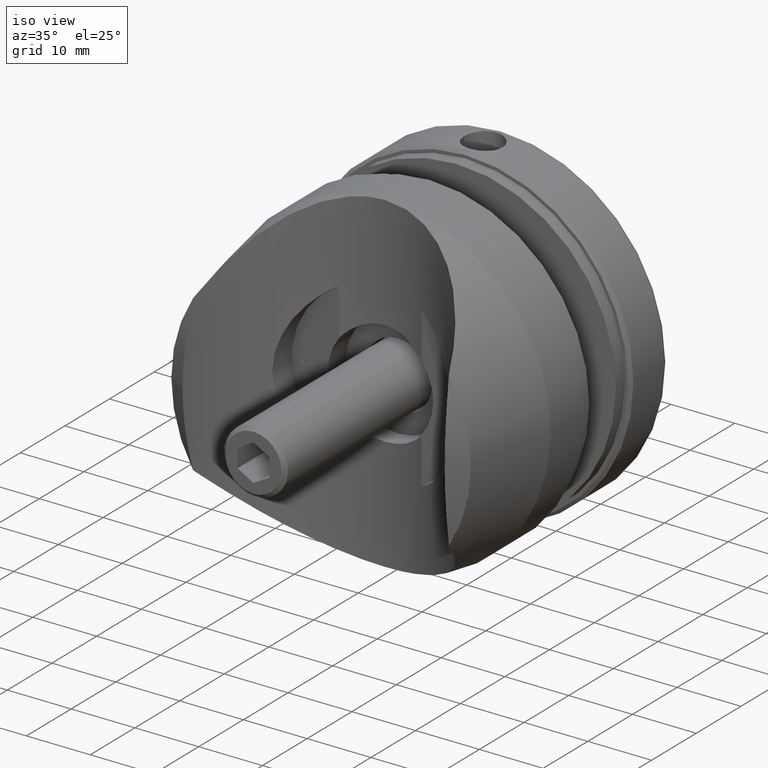
[diagram: clean part render]
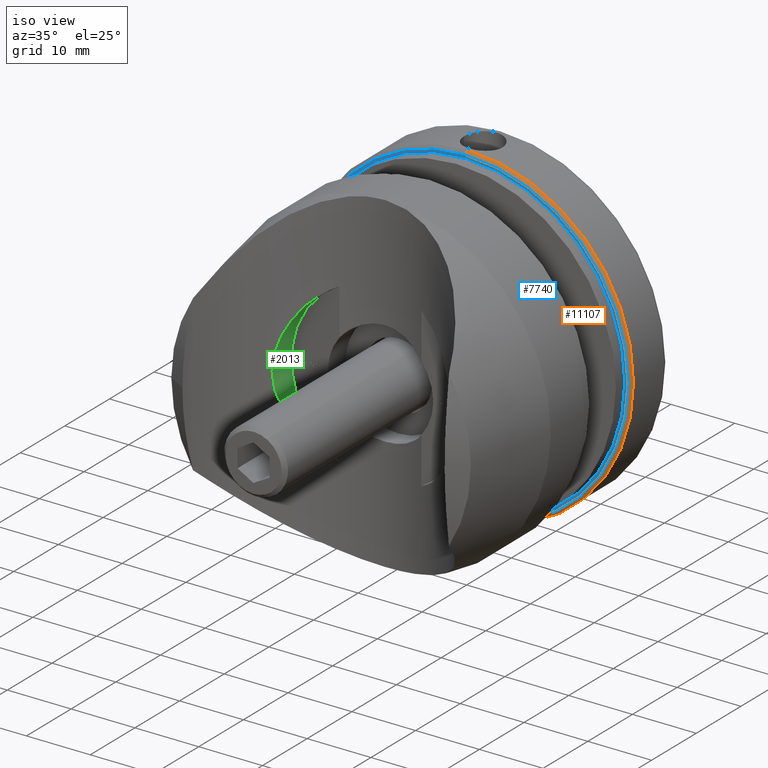
[diagram: same view with three faces highlighted in distinct colors, each labeled with its STEP entity id]
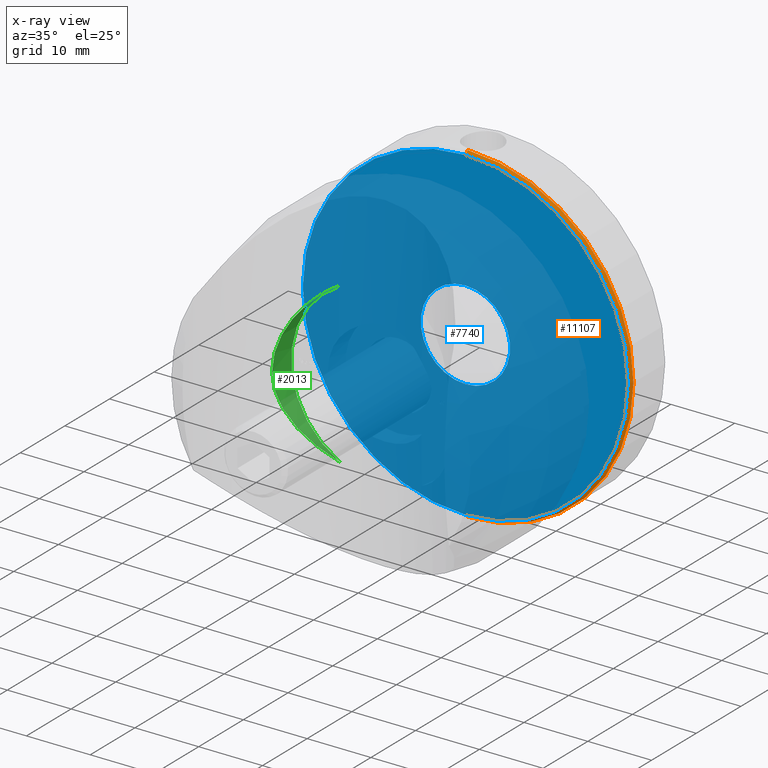
[diagram: x-ray of the same camera — body ghosted, the three highlighted faces saturated]
A machine part, iso view with three faces highlighted in distinct colors.
The next image is the same camera in x-ray (body ghosted, the three faces saturated) — at least one of them is partly hidden behind the body in this view.
Their STEP definitions:

[orange] entity #11107 — the highlighted conical surface has half-angle 45 deg.
#167 = LINE ( 'NONE', #14744, #13769 ) ;
#342 = VERTEX_POINT ( 'NONE', #437 ) ;
#437 = CARTESIAN_POINT ( 'NONE',  ( 0.000000000000000000, 8.000000000000000000, 25.49999999999999289 ) ) ;
#527 = DIRECTION ( 'NONE',  ( 8.659560562354844111E-17, 0.7071067811865549002, -0.7071067811865402453 ) ) ;
#631 = EDGE_CURVE ( 'NONE', #14041, #13141, #9693, .T. ) ;
#1333 = ORIENTED_EDGE ( 'NONE', *, *, #14711, .F. ) ;
#1458 = DIRECTION ( 'NONE',  ( 0.000000000000000000, 0.000000000000000000, -1.000000000000000000 ) ) ;
#1492 = DIRECTION ( 'NONE',  ( 0.000000000000000000, 0.000000000000000000, -1.000000000000000000 ) ) ;
#2161 = CARTESIAN_POINT ( 'NONE',  ( 3.184081677783118191E-15, 8.500000000000017764, 26.00000000000000000 ) ) ;
#2518 = VECTOR ( 'NONE', #7418, 1000.000000000000114 ) ;
#2964 = ORIENTED_EDGE ( 'NONE', *, *, #9972, .F. ) ;
#3659 = EDGE_CURVE ( 'NONE', #14817, #13141, #167, .T. ) ;
#4032 = DIRECTION ( 'NONE',  ( -0.000000000000000000, -1.000000000000000000, -0.000000000000000000 ) ) ;
#5713 = CARTESIAN_POINT ( 'NONE',  ( 0.000000000000000000, 8.500000000000017764, -26.00000000000000000 ) ) ;
#5769 = LINE ( 'NONE', #14635, #2518 ) ;
#6717 = EDGE_LOOP ( 'NONE', ( #2964, #14600, #10225, #1333 ) ) ;
#6943 = DIRECTION ( 'NONE',  ( 0.000000000000000000, 0.000000000000000000, 1.000000000000000000 ) ) ;
#6998 = CARTESIAN_POINT ( 'NONE',  ( 0.000000000000000000, 8.000000000000000000, 0.000000000000000000 ) ) ;
#7418 = DIRECTION ( 'NONE',  ( 0.000000000000000000, 0.7071067811865549002, 0.7071067811865402453 ) ) ;
#8516 = FACE_OUTER_BOUND ( 'NONE', #6717, .T. ) ;
#8793 = CIRCLE ( 'NONE', #12230, 25.49999999999999289 ) ;
#9693 = CIRCLE ( 'NONE', #10701, 26.00000000000000000 ) ;
#9972 = EDGE_CURVE ( 'NONE', #14817, #342, #8793, .T. ) ;
#10050 = CONICAL_SURFACE ( 'NONE', #11185, 25.49999999999999289, 0.7853981633974380649 ) ;
#10225 = ORIENTED_EDGE ( 'NONE', *, *, #631, .F. ) ;
#10675 = DIRECTION ( 'NONE',  ( 0.000000000000000000, 1.000000000000000000, 0.000000000000000000 ) ) ;
#10701 = AXIS2_PLACEMENT_3D ( 'NONE', #14057, #12735, #1492 ) ;
#11107 = ADVANCED_FACE ( 'NONE', ( #8516 ), #10050, .T. ) ;
#11185 = AXIS2_PLACEMENT_3D ( 'NONE', #6998, #10675, #6943 ) ;
#11667 = CARTESIAN_POINT ( 'NONE',  ( 3.153465507804433615E-15, 8.000000000000000000, -25.49999999999999289 ) ) ;
#12230 = AXIS2_PLACEMENT_3D ( 'NONE', #12632, #4032, #1458 ) ;
#12632 = CARTESIAN_POINT ( 'NONE',  ( 0.000000000000000000, 8.000000000000000000, 0.000000000000000000 ) ) ;
#12735 = DIRECTION ( 'NONE',  ( 0.000000000000000000, 1.000000000000000000, 0.000000000000000000 ) ) ;
#13141 = VERTEX_POINT ( 'NONE', #5713 ) ;
#13769 = VECTOR ( 'NONE', #527, 1000.000000000000114 ) ;
#14041 = VERTEX_POINT ( 'NONE', #2161 ) ;
#14057 = CARTESIAN_POINT ( 'NONE',  ( 0.000000000000000000, 8.500000000000017764, 0.000000000000000000 ) ) ;
#14600 = ORIENTED_EDGE ( 'NONE', *, *, #3659, .T. ) ;
#14635 = CARTESIAN_POINT ( 'NONE',  ( 0.000000000000000000, 8.000000000000000000, 25.49999999999999289 ) ) ;
#14711 = EDGE_CURVE ( 'NONE', #342, #14041, #5769, .T. ) ;
#14744 = CARTESIAN_POINT ( 'NONE',  ( 3.122849337825749433E-15, 8.000000000000000000, -25.49999999999999289 ) ) ;
#14817 = VERTEX_POINT ( 'NONE', #11667 ) ;

[blue] entity #7740 — the highlighted planar face has unit normal (0, -1, 0).
#342 = VERTEX_POINT ( 'NONE', #437 ) ;
#374 = VERTEX_POINT ( 'NONE', #4271 ) ;
#437 = CARTESIAN_POINT ( 'NONE',  ( 0.000000000000000000, 8.000000000000000000, 25.49999999999999289 ) ) ;
#508 = EDGE_CURVE ( 'NONE', #374, #10571, #6252, .T. ) ;
#1279 = DIRECTION ( 'NONE',  ( -0.000000000000000000, -1.000000000000000000, -0.000000000000000000 ) ) ;
#1324 = DIRECTION ( 'NONE',  ( -0.000000000000000000, -1.000000000000000000, -0.000000000000000000 ) ) ;
#1458 = DIRECTION ( 'NONE',  ( 0.000000000000000000, 0.000000000000000000, -1.000000000000000000 ) ) ;
#2227 = DIRECTION ( 'NONE',  ( 0.000000000000000000, 0.000000000000000000, -1.000000000000000000 ) ) ;
#2541 = AXIS2_PLACEMENT_3D ( 'NONE', #7975, #5444, #4135 ) ;
#4032 = DIRECTION ( 'NONE',  ( -0.000000000000000000, -1.000000000000000000, -0.000000000000000000 ) ) ;
#4076 = PLANE ( 'NONE',  #5411 ) ;
#4135 = DIRECTION ( 'NONE',  ( 0.000000000000000000, 0.000000000000000000, -1.000000000000000000 ) ) ;
#4271 = CARTESIAN_POINT ( 'NONE',  ( 0.000000000000000000, 7.999999999999998224, -6.999999999999999112 ) ) ;
#5320 = ORIENTED_EDGE ( 'NONE', *, *, #9972, .T. ) ;
#5411 = AXIS2_PLACEMENT_3D ( 'NONE', #12826, #9182, #15231 ) ;
#5444 = DIRECTION ( 'NONE',  ( -0.000000000000000000, -1.000000000000000000, -0.000000000000000000 ) ) ;
#6252 = CIRCLE ( 'NONE', #13486, 6.999999999999999112 ) ;
#7081 = FACE_BOUND ( 'NONE', #10200, .T. ) ;
#7291 = CARTESIAN_POINT ( 'NONE',  ( 0.000000000000000000, 8.000000000000000000, 0.000000000000000000 ) ) ;
#7483 = FACE_OUTER_BOUND ( 'NONE', #14146, .T. ) ;
#7740 = ADVANCED_FACE ( 'NONE', ( #7483, #7081 ), #4076, .T. ) ;
#7975 = CARTESIAN_POINT ( 'NONE',  ( 0.000000000000000000, 7.999999999999998224, 0.000000000000000000 ) ) ;
#8298 = ORIENTED_EDGE ( 'NONE', *, *, #8935, .T. ) ;
#8793 = CIRCLE ( 'NONE', #12230, 25.49999999999999289 ) ;
#8935 = EDGE_CURVE ( 'NONE', #342, #14817, #15687, .T. ) ;
#9182 = DIRECTION ( 'NONE',  ( 0.000000000000000000, -1.000000000000000000, -0.000000000000000000 ) ) ;
#9742 = DIRECTION ( 'NONE',  ( 0.000000000000000000, 0.000000000000000000, -1.000000000000000000 ) ) ;
#9846 = CARTESIAN_POINT ( 'NONE',  ( 0.000000000000000000, 7.999999999999998224, 0.000000000000000000 ) ) ;
#9972 = EDGE_CURVE ( 'NONE', #14817, #342, #8793, .T. ) ;
#10200 = EDGE_LOOP ( 'NONE', ( #11428, #15352 ) ) ;
#10571 = VERTEX_POINT ( 'NONE', #15289 ) ;
#11428 = ORIENTED_EDGE ( 'NONE', *, *, #508, .F. ) ;
#11667 = CARTESIAN_POINT ( 'NONE',  ( 3.153465507804433615E-15, 8.000000000000000000, -25.49999999999999289 ) ) ;
#11915 = CIRCLE ( 'NONE', #2541, 6.999999999999999112 ) ;
#12230 = AXIS2_PLACEMENT_3D ( 'NONE', #12632, #4032, #1458 ) ;
#12632 = CARTESIAN_POINT ( 'NONE',  ( 0.000000000000000000, 8.000000000000000000, 0.000000000000000000 ) ) ;
#12826 = CARTESIAN_POINT ( 'NONE',  ( 26.00000000000000355, 8.000000000000000000, 0.000000000000000000 ) ) ;
#13486 = AXIS2_PLACEMENT_3D ( 'NONE', #9846, #1324, #9742 ) ;
#14146 = EDGE_LOOP ( 'NONE', ( #8298, #5320 ) ) ;
#14557 = AXIS2_PLACEMENT_3D ( 'NONE', #7291, #1279, #2227 ) ;
#14762 = EDGE_CURVE ( 'NONE', #10571, #374, #11915, .T. ) ;
#14817 = VERTEX_POINT ( 'NONE', #11667 ) ;
#15231 = DIRECTION ( 'NONE',  ( 0.000000000000000000, 0.000000000000000000, -1.000000000000000000 ) ) ;
#15289 = CARTESIAN_POINT ( 'NONE',  ( 8.572527594031472204E-16, 7.999999999999998224, 6.999999999999999112 ) ) ;
#15352 = ORIENTED_EDGE ( 'NONE', *, *, #14762, .F. ) ;
#15687 = CIRCLE ( 'NONE', #14557, 25.49999999999999289 ) ;

[green] entity #2013 — the highlighted cylindrical surface (partial cylindrical patch) has radius 14 mm, axis along (0, 1, 0).
#98 = CARTESIAN_POINT ( 'NONE',  ( -13.35162374790462891, -8.732218800530011649, -4.223602130954753342 ) ) ;
#147 = CARTESIAN_POINT ( 'NONE',  ( -13.90446441232518282, -9.196569484982193288, -1.666245527864538278 ) ) ;
#651 = CARTESIAN_POINT ( 'NONE',  ( -6.434283176858158981, -4.999999999999999112, 12.43382483389564719 ) ) ;
#1328 = CARTESIAN_POINT ( 'NONE',  ( -13.53573863108842801, -8.883215835452425324, 3.590120031700896330 ) ) ;
#1447 = CARTESIAN_POINT ( 'NONE',  ( -13.98799137397240067, -9.269617225265974980, -0.6684174912336253715 ) ) ;
#1619 = CYLINDRICAL_SURFACE ( 'NONE', #8787, 14.00000000000000000 ) ;
#1779 = B_SPLINE_CURVE_WITH_KNOTS ( 'NONE', 3,
 ( #4207, #10760, #15693, #3339, #13182, #2190, #5832, #12006, #5880, #9588, #2117, #12162, #98, #12214, #9955, #147, #3723, #1447, #11081, #14720, #8679, #13423, #9793, #3668, #1328, #15901, #6150, #4961, #8736, #8573, #6097, #13539, #6210, #13591, #9901, #2443 ),
 .UNSPECIFIED., .F., .F.,
 ( 4, 2, 2, 2, 2, 2, 2, 2, 2, 2, 2, 2, 2, 2, 2, 2, 2, 4 ),
 ( 0.000000000000000000, 0.003967715631147254382, 0.005951573446720879838, 0.007935431262294505295, 0.009919289077868129884, 0.01091121798565494218, 0.01190314689344175447, 0.01388700470901537733, 0.01487893361680218962, 0.01587086252458900365, 0.01785472034016262824, 0.01884664924794944227, 0.01983857815573625630, 0.02182243597130988436, 0.02380629378688351241, 0.02579015160245713700, 0.02777400941803076506, 0.03174172504917802118 ),
 .UNSPECIFIED. ) ;
#2013 = ADVANCED_FACE ( 'NONE', ( #3708 ), #1619, .F. ) ;
#2117 = CARTESIAN_POINT ( 'NONE',  ( -13.02845232184455959, -8.475183218172784194, -5.134506879435819293 ) ) ;
#2190 = CARTESIAN_POINT ( 'NONE',  ( -11.19891875839931217, -7.193431373115421579, -8.424527424304843137 ) ) ;
#2443 = CARTESIAN_POINT ( 'NONE',  ( -6.434283176858158981, -4.999999999999999112, 12.43382483389564719 ) ) ;
#2694 = CIRCLE ( 'NONE', #3415, 14.00000000000000000 ) ;
#2732 = DIRECTION ( 'NONE',  ( 0.000000000000000000, 0.000000000000000000, 1.000000000000000000 ) ) ;
#2850 = VERTEX_POINT ( 'NONE', #651 ) ;
#3339 = CARTESIAN_POINT ( 'NONE',  ( -9.973508918108024091, -6.485548099568897662, -9.844664162035757116 ) ) ;
#3415 = AXIS2_PLACEMENT_3D ( 'NONE', #7330, #10834, #8610 ) ;
#3668 = CARTESIAN_POINT ( 'NONE',  ( -13.61580148906639387, -8.950132470932315343, 3.273849153445371307 ) ) ;
#3708 = FACE_OUTER_BOUND ( 'NONE', #15590, .T. ) ;
#3723 = CARTESIAN_POINT ( 'NONE',  ( -13.94045143643242390, -9.227999130467777533, -1.332102987528588356 ) ) ;
#4207 = CARTESIAN_POINT ( 'NONE',  ( -6.434283176858158981, -4.999999999999999112, -12.43382483389564719 ) ) ;
#4814 = CARTESIAN_POINT ( 'NONE',  ( -6.434283176858158981, -4.999999999999999112, -12.43382483389564719 ) ) ;
#4961 = CARTESIAN_POINT ( 'NONE',  ( -12.51866805154791962, -8.087706397904696587, 6.300330079993611498 ) ) ;
#5073 = ORIENTED_EDGE ( 'NONE', *, *, #14065, .T. ) ;
#5399 = CARTESIAN_POINT ( 'NONE',  ( 0.000000000000000000, -13.00000000000000000, 0.000000000000000000 ) ) ;
#5832 = CARTESIAN_POINT ( 'NONE',  ( -11.56094592462099335, -7.425233021071639072, -7.920392564972296157 ) ) ;
#5880 = CARTESIAN_POINT ( 'NONE',  ( -12.51453355176536775, -8.084696140783787399, -6.308293346304586713 ) ) ;
#6097 = CARTESIAN_POINT ( 'NONE',  ( -11.20248830822768049, -7.195670062763913855, 8.419729389389733143 ) ) ;
#6150 = CARTESIAN_POINT ( 'NONE',  ( -13.04220161764654407, -8.483283244793065947, 5.129540512207380054 ) ) ;
#6210 = CARTESIAN_POINT ( 'NONE',  ( -9.978338573202675477, -6.488091603719488454, 9.839866633296317389 ) ) ;
#7330 = CARTESIAN_POINT ( 'NONE',  ( 0.000000000000000000, -4.999999999999999112, 0.000000000000000000 ) ) ;
#8156 = VERTEX_POINT ( 'NONE', #4814 ) ;
#8573 = CARTESIAN_POINT ( 'NONE',  ( -11.56436208028473800, -7.427450410754398824, 7.915462748870515597 ) ) ;
#8610 = DIRECTION ( 'NONE',  ( 0.000000000000000000, 0.000000000000000000, 1.000000000000000000 ) ) ;
#8679 = CARTESIAN_POINT ( 'NONE',  ( -13.95389330491143731, -9.239292123093289177, 1.315548228364553207 ) ) ;
#8736 = CARTESIAN_POINT ( 'NONE',  ( -12.22243514063951331, -7.873428831445560050, 6.855734831915888172 ) ) ;
#8772 = ORIENTED_EDGE ( 'NONE', *, *, #10366, .F. ) ;
#8787 = AXIS2_PLACEMENT_3D ( 'NONE', #5399, #12651, #2732 ) ;
#9588 = CARTESIAN_POINT ( 'NONE',  ( -12.90641438486093229, -8.380628377399311546, -5.433828895592665909 ) ) ;
#9793 = CARTESIAN_POINT ( 'NONE',  ( -13.75449857487627980, -9.067361844520362979, 2.630951809308578415 ) ) ;
#9901 = CARTESIAN_POINT ( 'NONE',  ( -7.582655145861409096, -5.365789625788767836, 11.83956276734391189 ) ) ;
#9955 = CARTESIAN_POINT ( 'NONE',  ( -13.76233420358110848, -9.073815310513626997, -2.653333051074834081 ) ) ;
#10366 = EDGE_CURVE ( 'NONE', #8156, #2850, #1779, .T. ) ;
#10760 = CARTESIAN_POINT ( 'NONE',  ( -7.582307810497235678, -5.365678989447657088, -11.83974250721642285 ) ) ;
#10834 = DIRECTION ( 'NONE',  ( 0.000000000000000000, 1.000000000000000000, 0.000000000000000000 ) ) ;
#11081 = CARTESIAN_POINT ( 'NONE',  ( -13.99985318397765788, -9.280071895118560121, -0.3370505373441932129 ) ) ;
#12006 = CARTESIAN_POINT ( 'NONE',  ( -12.21873971223191724, -7.870827726866481910, -6.862251008233807958 ) ) ;
#12162 = CARTESIAN_POINT ( 'NONE',  ( -13.25078494258172945, -8.650777519964405471, -4.529948035353154268 ) ) ;
#12214 = CARTESIAN_POINT ( 'NONE',  ( -13.62290129975629682, -8.954654280871379157, -3.291693613014982756 ) ) ;
#12651 = DIRECTION ( 'NONE',  ( -0.000000000000000000, 1.000000000000000000, -0.000000000000000000 ) ) ;
#13182 = CARTESIAN_POINT ( 'NONE',  ( -10.40601407641039344, -6.723875782148446945, -9.386336597503900592 ) ) ;
#13423 = CARTESIAN_POINT ( 'NONE',  ( -13.81334137118346739, -9.117853571822193359, 2.302618409474864514 ) ) ;
#13539 = CARTESIAN_POINT ( 'NONE',  ( -10.41091530852169456, -6.726654790655208771, 9.380854424055398155 ) ) ;
#13591 = CARTESIAN_POINT ( 'NONE',  ( -8.604327264508473405, -5.797511026307307525, 11.11424385621111455 ) ) ;
#14065 = EDGE_CURVE ( 'NONE', #8156, #2850, #2694, .T. ) ;
#14720 = CARTESIAN_POINT ( 'NONE',  ( -14.00028957375896965, -9.280455659756160713, 0.6556377059848416122 ) ) ;
#15590 = EDGE_LOOP ( 'NONE', ( #5073, #8772 ) ) ;
#15693 = CARTESIAN_POINT ( 'NONE',  ( -8.602410454014513874, -5.796781332129952169, -11.11538145058765892 ) ) ;
#15901 = CARTESIAN_POINT ( 'NONE',  ( -13.26459103534792838, -8.660795432934261129, 4.524527952130011244 ) ) ;